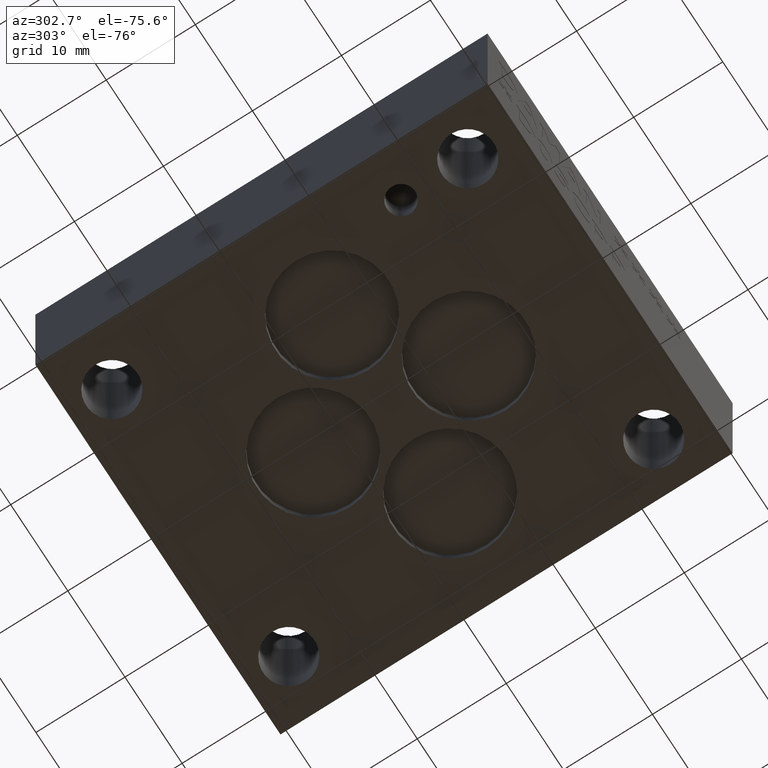
[diagram: clean part render]
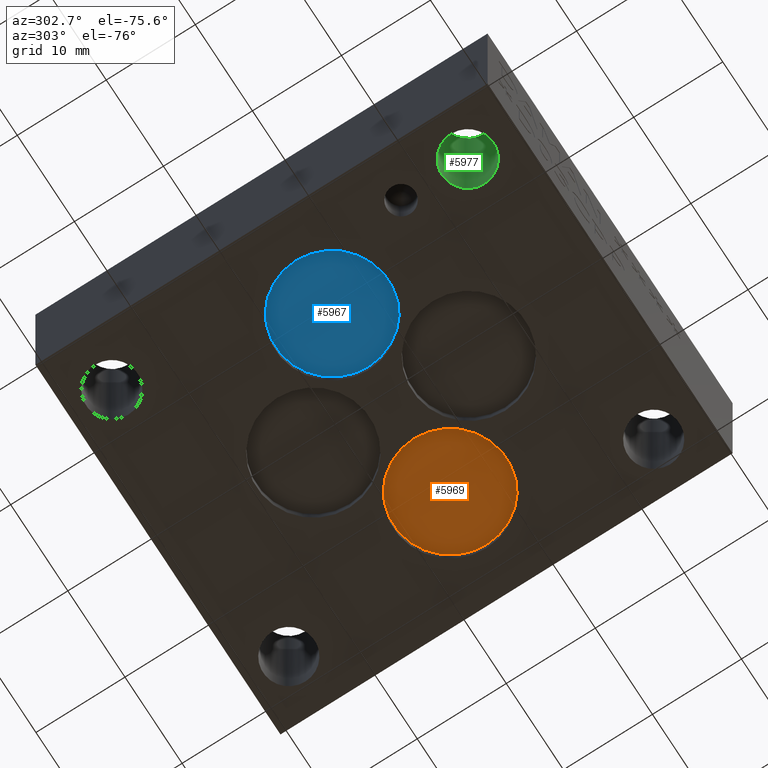
[diagram: same view with three faces highlighted in distinct colors, each labeled with its STEP entity id]
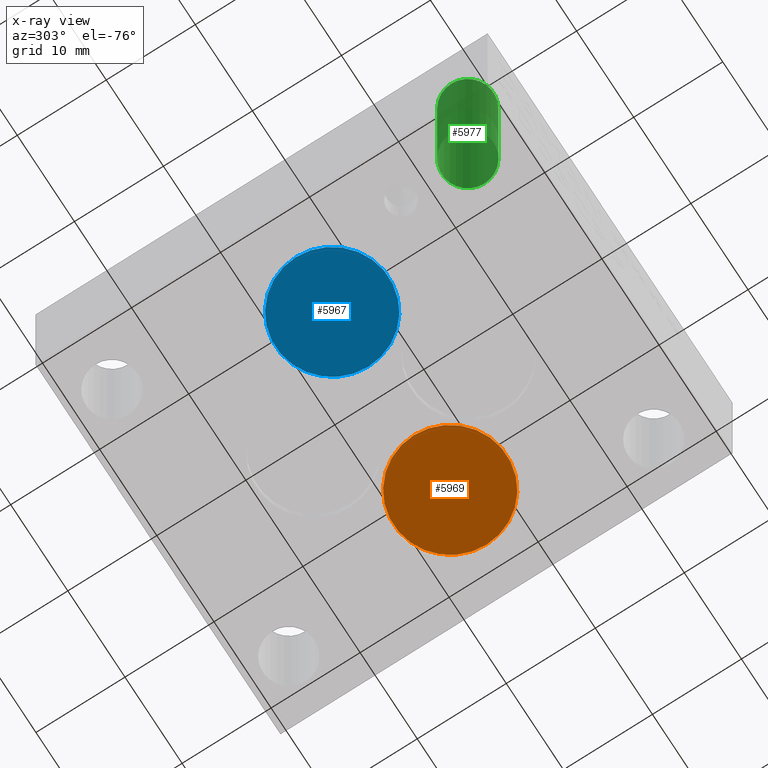
[diagram: x-ray of the same camera — body ghosted, the three highlighted faces saturated]
A machine part, auxiliary view with three faces highlighted in distinct colors.
The next image is the same camera in x-ray (body ghosted, the three faces saturated) — at least one of them is partly hidden behind the body in this view.
Their STEP definitions:

[orange] entity #5969 — the highlighted planar face has unit normal (0, 0, -1).
#25=CIRCLE('',#6211,6.35);
#26=CIRCLE('',#6212,6.35);
#292=PLANE('',#6213);
#582=FACE_OUTER_BOUND('',#902,.T.);
#902=EDGE_LOOP('',(#5252,#5253));
#2862=VERTEX_POINT('',#9986);
#2863=VERTEX_POINT('',#9988);
#3668=EDGE_CURVE('',#2863,#2862,#25,.T.);
#3669=EDGE_CURVE('',#2862,#2863,#26,.T.);
#5252=ORIENTED_EDGE('',*,*,#3668,.T.);
#5253=ORIENTED_EDGE('',*,*,#3669,.T.);
#5969=ADVANCED_FACE('',(#582),#292,.T.);
#6211=AXIS2_PLACEMENT_3D('',#9989,#7287,#7288);
#6212=AXIS2_PLACEMENT_3D('',#9990,#7289,#7290);
#6213=AXIS2_PLACEMENT_3D('',#9991,#7291,#7292);
#7287=DIRECTION('center_axis',(0.,0.,-1.));
#7288=DIRECTION('ref_axis',(1.,0.,0.));
#7289=DIRECTION('center_axis',(0.,0.,-1.));
#7290=DIRECTION('ref_axis',(1.,0.,0.));
#7291=DIRECTION('center_axis',(0.,0.,-1.));
#7292=DIRECTION('ref_axis',(1.,0.,0.));
#9986=CARTESIAN_POINT('',(25.4,24.5872,1.3208));
#9988=CARTESIAN_POINT('',(38.1,24.5872,1.3208));
#9989=CARTESIAN_POINT('Origin',(31.75,24.5872,1.3208));
#9990=CARTESIAN_POINT('Origin',(31.75,24.5872,1.3208));
#9991=CARTESIAN_POINT('Origin',(31.75,24.5872,1.3208));

[blue] entity #5967 — the highlighted planar face has unit normal (0, 0, -1).
#21=CIRCLE('',#6205,6.35);
#22=CIRCLE('',#6206,6.35);
#291=PLANE('',#6207);
#580=FACE_OUTER_BOUND('',#900,.T.);
#900=EDGE_LOOP('',(#5244,#5245));
#2858=VERTEX_POINT('',#9975);
#2859=VERTEX_POINT('',#9977);
#3663=EDGE_CURVE('',#2859,#2858,#21,.T.);
#3664=EDGE_CURVE('',#2858,#2859,#22,.T.);
#5244=ORIENTED_EDGE('',*,*,#3663,.T.);
#5245=ORIENTED_EDGE('',*,*,#3664,.T.);
#5967=ADVANCED_FACE('',(#580),#291,.T.);
#6205=AXIS2_PLACEMENT_3D('',#9978,#7274,#7275);
#6206=AXIS2_PLACEMENT_3D('',#9979,#7276,#7277);
#6207=AXIS2_PLACEMENT_3D('',#9980,#7278,#7279);
#7274=DIRECTION('center_axis',(0.,0.,-1.));
#7275=DIRECTION('ref_axis',(1.,0.,0.));
#7276=DIRECTION('center_axis',(0.,0.,-1.));
#7277=DIRECTION('ref_axis',(1.,0.,0.));
#7278=DIRECTION('center_axis',(0.,0.,-1.));
#7279=DIRECTION('ref_axis',(1.,0.,0.));
#9975=CARTESIAN_POINT('',(4.7498,24.5872,1.3208));
#9977=CARTESIAN_POINT('',(17.4498,24.5872,1.3208));
#9978=CARTESIAN_POINT('Origin',(11.0998,24.5872,1.3208));
#9979=CARTESIAN_POINT('Origin',(11.0998,24.5872,1.3208));
#9980=CARTESIAN_POINT('Origin',(11.0998,24.5872,1.3208));

[green] entity #5977 — the highlighted cylindrical surface (bore or boss wall) has radius 2.8956 mm, axis along (0, 0, -1).
#44=CIRCLE('',#6239,2.8956);
#45=CIRCLE('',#6240,2.8956);
#46=CIRCLE('',#6241,2.8956);
#55=CYLINDRICAL_SURFACE('',#6238,2.8956);
#590=FACE_OUTER_BOUND('',#910,.T.);
#910=EDGE_LOOP('',(#5287,#5288,#5289,#5290,#5291));
#1547=LINE('',#10046,#2173);
#2173=VECTOR('',#7353,2.8956);
#2882=VERTEX_POINT('',#10041);
#2883=VERTEX_POINT('',#10042);
#2884=VERTEX_POINT('',#10045);
#3693=EDGE_CURVE('',#2882,#2883,#44,.T.);
#3694=EDGE_CURVE('',#2883,#2882,#45,.T.);
#3695=EDGE_CURVE('',#2883,#2884,#1547,.T.);
#3696=EDGE_CURVE('',#2884,#2884,#46,.T.);
#5287=ORIENTED_EDGE('',*,*,#3693,.F.);
#5288=ORIENTED_EDGE('',*,*,#3694,.F.);
#5289=ORIENTED_EDGE('',*,*,#3695,.T.);
#5290=ORIENTED_EDGE('',*,*,#3696,.F.);
#5291=ORIENTED_EDGE('',*,*,#3695,.F.);
#5977=ADVANCED_FACE('',(#590),#55,.F.);
#6238=AXIS2_PLACEMENT_3D('',#10040,#7347,#7348);
#6239=AXIS2_PLACEMENT_3D('',#10043,#7349,#7350);
#6240=AXIS2_PLACEMENT_3D('',#10044,#7351,#7352);
#6241=AXIS2_PLACEMENT_3D('',#10047,#7354,#7355);
#7347=DIRECTION('center_axis',(0.,0.,-1.));
#7348=DIRECTION('ref_axis',(1.,0.,0.));
#7349=DIRECTION('center_axis',(0.,0.,1.));
#7350=DIRECTION('ref_axis',(1.,0.,0.));
#7351=DIRECTION('center_axis',(0.,0.,1.));
#7352=DIRECTION('ref_axis',(1.,0.,0.));
#7353=DIRECTION('',(0.,0.,1.));
#7354=DIRECTION('center_axis',(0.,0.,-1.));
#7355=DIRECTION('ref_axis',(1.,0.,0.));
#10040=CARTESIAN_POINT('Origin',(5.1562,5.5372,69.1507431271711));
#10041=CARTESIAN_POINT('',(8.0518,5.5372,0.));
#10042=CARTESIAN_POINT('',(2.2606,5.5372,-8.88178419700125E-15));
#10043=CARTESIAN_POINT('Origin',(5.1562,5.5372,0.));
#10044=CARTESIAN_POINT('Origin',(5.1562,5.5372,0.));
#10045=CARTESIAN_POINT('',(2.2606,5.5372,19.05));
#10046=CARTESIAN_POINT('',(2.2606,5.5372,69.1507431271711));
#10047=CARTESIAN_POINT('Origin',(5.1562,5.5372,19.05));